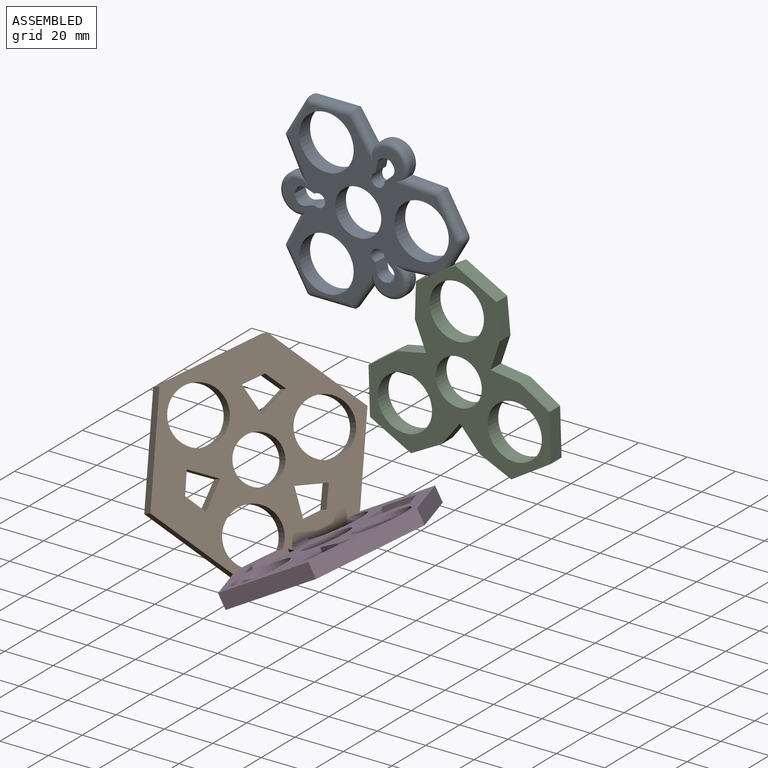
[diagram: assembled view]
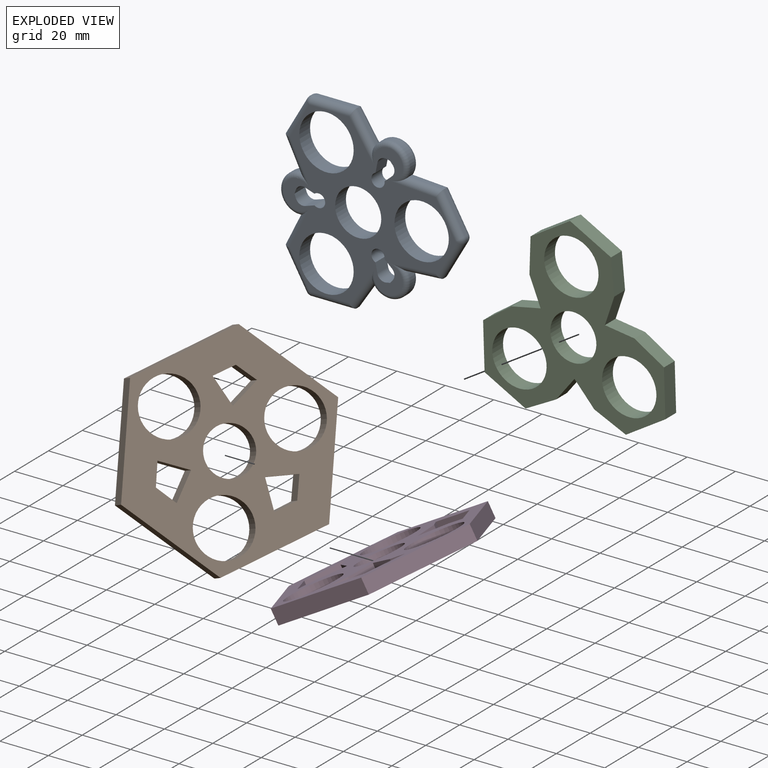
[diagram: exploded view]
GUIDED TOUR — MATED ASSEMBLY (Onshape document 59021a903d0cba100f4f1128, AutoMate assembly 59021a903d0cba100f4f1128_e5d3dc2b73d7f87d813b32a2_ea5c215736bf50aa72ad84df_default)

This assembly has 4 components, labeled P0..P3 below (a component is one placed occurrence of a part; the same part can appear more than once), held together by 2 mates. A mate is a constraint between two components; its type names the relative motion it leaves free:
  PARALLEL — keeps the two listed directions parallel.
Axis/direction vectors are unit vectors and 'through' points are millimeter coordinates, both in the assembly's world frame.

MATES
  1. PARALLEL "Parallel 2": P2 <-> P0, direction (0.850, 0.000, 0.527) through (-41.20, -40.34, -11.28) mm
  2. PARALLEL "Parallel 1": P1 <-> P3, direction (-0.433, -0.866, -0.250) through (-89.29, -59.30, -126.56) mm

ASSEMBLY ORDER
  1. P1 — the base component [order heuristic]
  2. P3 — core [order heuristic]
  3. P0 [order verified]
  4. P2 [order verified]
Order-tag legend:
  [order verified] — this step's position reverses a verified removal order: the component was checked to insert without passing through the ones already placed.
  [order heuristic] — the first 2 components form the assembly's core: parts whose collision-free extraction could not be verified, listed in mate-graph order.

Of the 4 components, 2 carry the full construction recipe — the FeatureScript program that regenerates the part's solid from scratch; the rest are supplied as boundary geometry only.
Each toured component is shown spotlighted twice — in the assembled view, then in the exploded view, where a leader line traces a displaced component back to its assembled socket (saturated green if recipe-attached, orange if geometry-only; every other component desaturated gray) — followed by its recipe or geometry summary and the mates that hold it.
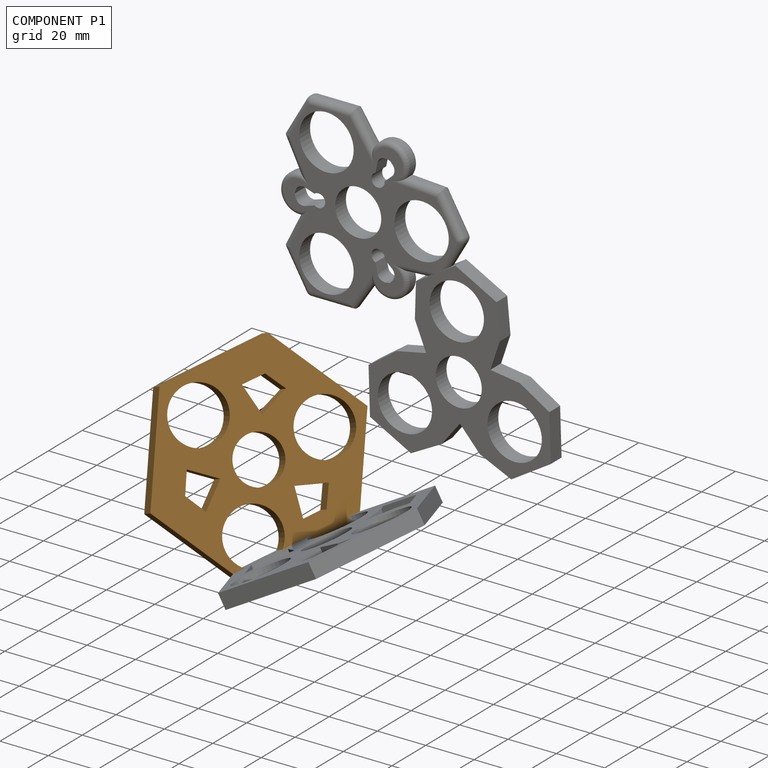
[diagram: component P1 — assembled]
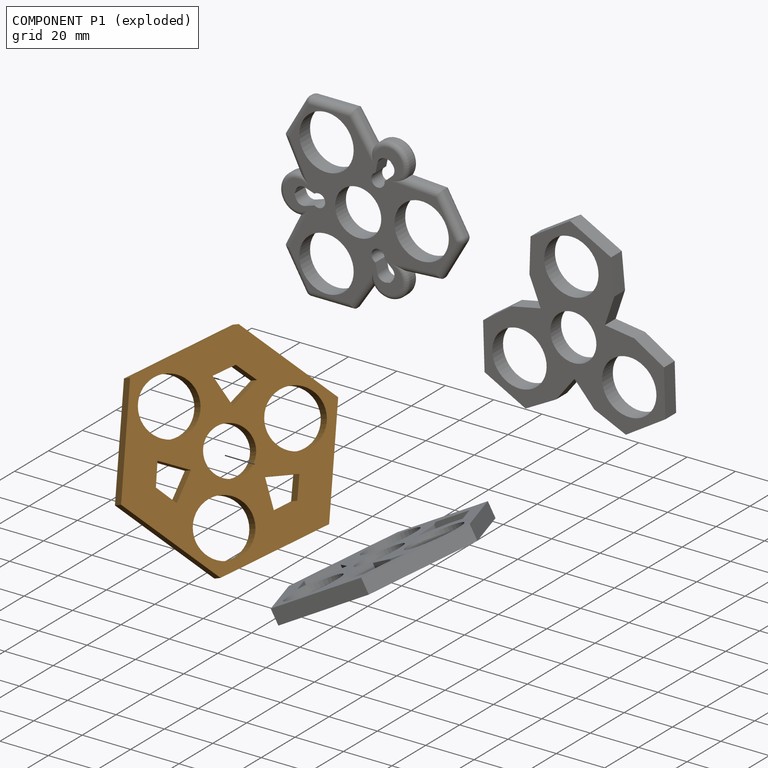
[diagram: component P1 — exploded]
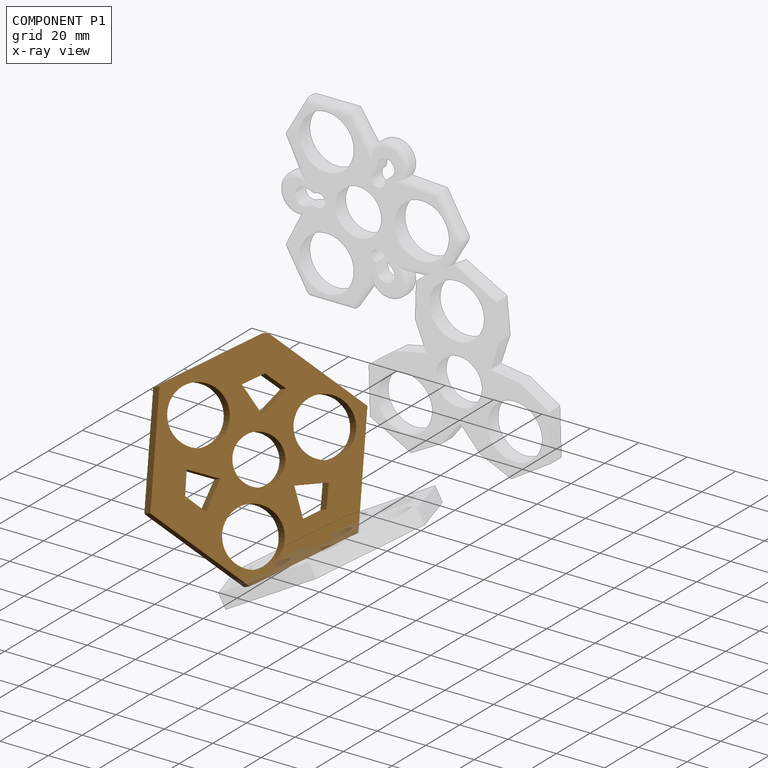
[diagram: component P1 — x-ray view]
COMPONENT P1 — geometry summary (no construction recipe available for this part):
  bounding box: 86.4 x 74.8 x 6.4 mm
  B-rep topology: 1 solid, 29 faces, 162 edges
  volume: 19272 mm^3 (47% of its bounding box)
  symmetry: 2-fold rotationally symmetric about the x axis; 3-fold rotationally symmetric about the y axis; mirror-symmetric across its y mid-plane, z mid-plane
Held by: PARALLEL mate "Parallel 1" to P3.
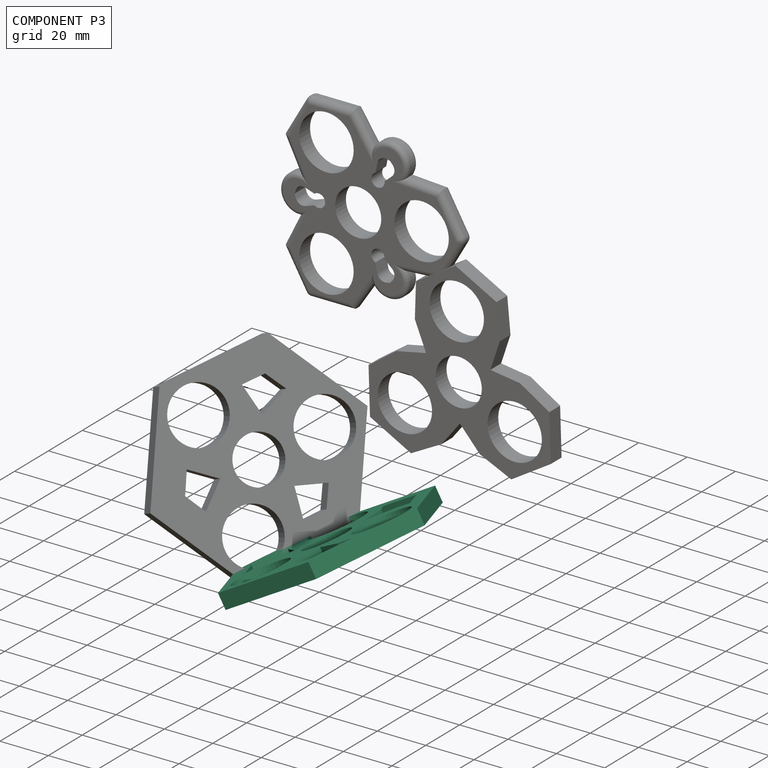
[diagram: component P3 — assembled]
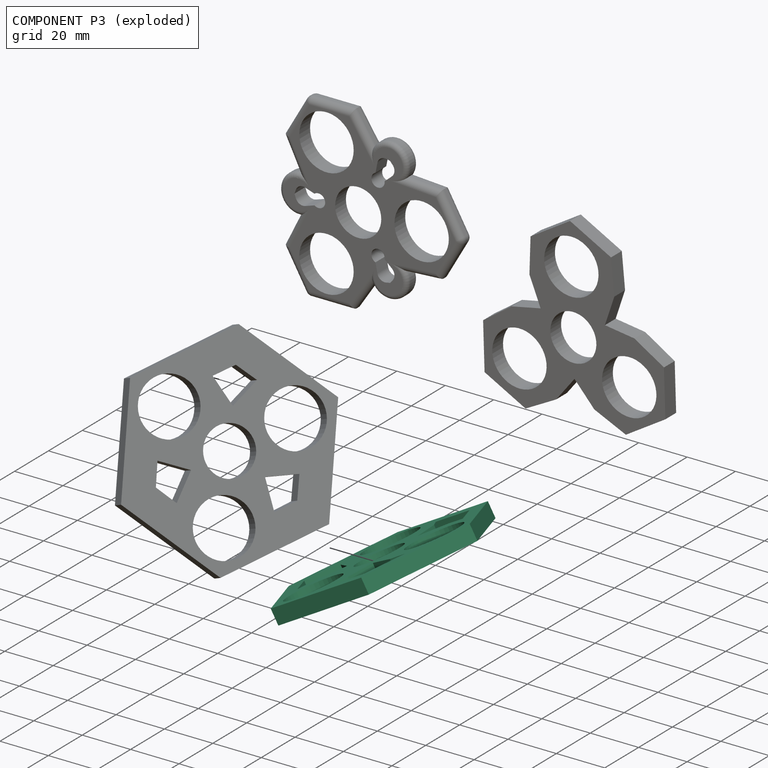
[diagram: component P3 — exploded]
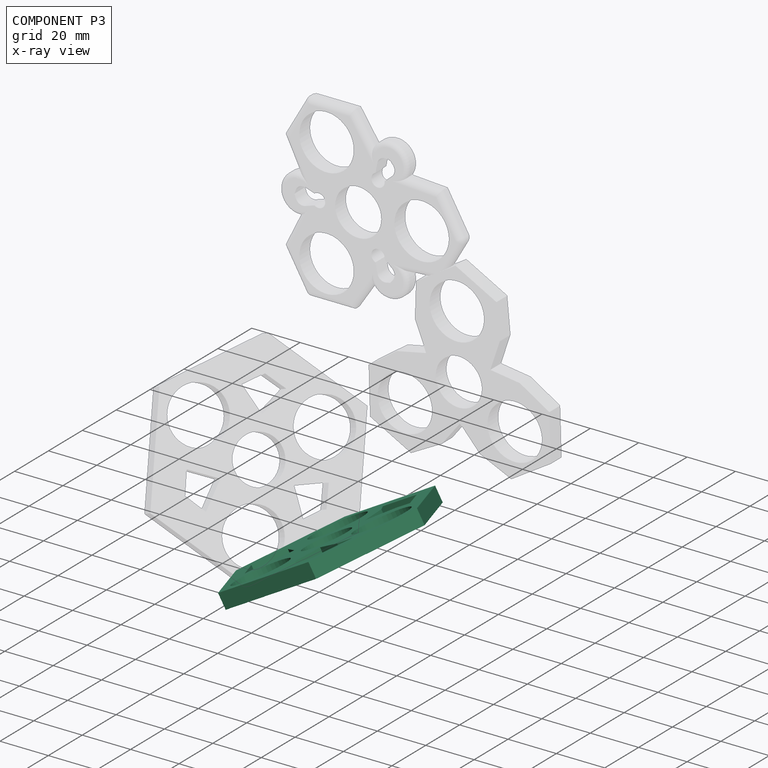
[diagram: component P3 — x-ray view]
COMPONENT P3 — recipe-attached (CADFS 00746139, mesh-verified: the recipe's output STEP matches this component's geometry to below the mesh-comparison resolution (tessellation chordal tolerance ~0.172 mm)).
Held by: PARALLEL mate "Parallel 1" to P1.
Construction recipe (FeatureScript — the CAD program that rebuilds this solid; sketch coordinates are in the units given by the * unit suffixes, e.g. mm):

FeatureScript 1511;
import(path : "onshape/std/geometry.fs", version : "1511.0");
import(path : "onshape/std/common.fs", version : "1511.0");
const mm = millimeter;
const VERTEX = EntityType.VERTEX;
const EDGE = EntityType.EDGE;
const FACE = EntityType.FACE;
const BODY = EntityType.BODY;
function v(x, y){return vector(x, y);}
function OD(order){return orderDisambiguation(order);}
function OSD(set){return originalSetDisambiguation(set);}
function TD(topology){return topologyDisambiguation(topology);}
function TDD(query){return trueDependencyDisambiguation(query);}
function sQuery(a, b, c) {return sketchEntityQuery(a, b, c);}

annotation { "Feature Type Name" : "Feature", "Feature Type Description" : "" }
export const myFeature = defineFeature(function(context is Context, id is Id, definition is map)
    precondition{}
    {
        {
            var Q0;
            Q0=qCreatedBy(makeId("Front.planeOp"),FACE);
            var sketch = newSketch(context, id + "F0", { "sketchPlane" : qUnion([Q0])});
            skLineSegment(sketch, "E0.0", {"start": v(33.57, 16.65) * mm, "end": v(42.45, 1.27) * mm});
            skLineSegment(sketch, "E0.1", {"start": v(42.45, -1.27) * mm, "end": v(33.57, -16.65) * mm});
            skLineSegment(sketch, "E0.2", {"start": v(-2.36, -37.4) * mm, "end": v(-20.12, -37.4) * mm});
            skLineSegment(sketch, "E0.3", {"start": v(-22.32, -36.12) * mm, "end": v(-31.2, -20.75) * mm});
            skLineSegment(sketch, "E0.4", {"start": v(-31.2, 20.75) * mm, "end": v(-22.32, 36.12) * mm});
            skLineSegment(sketch, "E0.5", {"start": v(-20.12, 37.4) * mm, "end": v(-2.36, 37.4) * mm});
            skPoint(sketch, "E0.0.midPoint", {"position": v(32.38, 18.7) * mm});
            skPoint(sketch, "E1.visualSharp", {"position": v(-43.18, 0) * mm});
            skPoint(sketch, "E2.visualSharp", {"position": v(-21.59, 37.4) * mm});
            skArc(sketch, "E2.filletArc", {"start": v(-20.12, 37.4) * mm, "mid": v(-21.4, 37.05) * mm, "end": v(-22.32, 36.12) * mm});
            skPoint(sketch, "E3.visualSharp", {"position": v(21.6, 37.4) * mm});
            skPoint(sketch, "E4.visualSharp", {"position": v(43.18, 0) * mm});
            skArc(sketch, "E4.filletArc", {"start": v(42.45, -1.27) * mm, "mid": v(42.79, 0) * mm, "end": v(42.45, 1.27) * mm});
            skPoint(sketch, "E5.visualSharp", {"position": v(21.6, -37.4) * mm});
            skPoint(sketch, "E6.visualSharp", {"position": v(-21.59, -37.4) * mm});
            skArc(sketch, "E6.filletArc", {"start": v(-22.32, -36.12) * mm, "mid": v(-21.4, -37.05) * mm, "end": v(-20.12, -37.4) * mm});
            skCircle(sketch, "E7", {"center": v(0, 0) * mm, "radius": 9.53 * mm});
            skCircle(sketch, "E8", {"center": v(-13.1, -22.7) * mm, "radius": 11.24 * mm});
            skCircle(sketch, "E9.MirrorC", {"center": v(26.22, 0) * mm, "radius": 11.24 * mm});
            skCircle(sketch, "E10.MirrorC", {"center": v(-13.1, 22.7) * mm, "radius": 11.24 * mm});
            skLineSegment(sketch, "E11.trimOffspring", {"start": v(-21.4, -37.05) * mm, "end": v(-21.59, -37.4) * mm});
            skLineSegment(sketch, "E12", {"start": v(-2.36, -37.4) * mm, "end": v(-2.32, -37.32) * mm});
            skLineSegment(sketch, "E13", {"start": v(5.58, -25.44) * mm, "end": v(7.68, -13.3) * mm});
            skLineSegment(sketch, "E14.MirrorCS", {"start": v(19.24, -17.55) * mm, "end": v(7.68, -13.3) * mm});
            skLineSegment(sketch, "E15.MirrorCS", {"start": v(19.24, 17.55) * mm, "end": v(7.68, 13.3) * mm});
            skLineSegment(sketch, "E16.MirrorCS", {"start": v(33.57, 16.65) * mm, "end": v(33.48, 16.65) * mm});
            skLineSegment(sketch, "E17.MirrorCS", {"start": v(5.58, 25.44) * mm, "end": v(7.68, 13.3) * mm});
            skLineSegment(sketch, "E18.MirrorCS", {"start": v(33.57, -16.65) * mm, "end": v(42.45, -1.27) * mm});
            skPoint(sketch, "E19.MirrorP", {"position": v(21.59, -37.4) * mm});
            skPoint(sketch, "E20.MirrorCS.end.orphan", {"position": v(42.45, -73.52) * mm});
            skPoint(sketch, "E20.MirrorCS.start.orphan", {"position": v(22.32, -38.67) * mm});
            skPoint(sketch, "E21.MirrorCS.end.orphan", {"position": v(20.12, -37.4) * mm});
            skPoint(sketch, "E21.MirrorCS.start.orphan", {"position": v(0, -37.4) * mm});
            skPoint(sketch, "E22.orphan", {"position": v(22.32, -36.12) * mm});
            skLineSegment(sketch, "E23.MirrorCS", {"start": v(-24.82, -7.89) * mm, "end": v(-15.35, 0) * mm});
            skLineSegment(sketch, "E24.MirrorCS", {"start": v(-31.2, 20.75) * mm, "end": v(-31.16, 20.67) * mm});
            skLineSegment(sketch, "E25.MirrorCS", {"start": v(-31.2, -20.75) * mm, "end": v(-31.16, -20.67) * mm});
            skPoint(sketch, "E1.filletArc.end.orphan", {"position": v(-42.45, -1.27) * mm});
            skLineSegment(sketch, "E26", {"start": v(7.68, 13.3) * mm, "end": v(19.24, 17.55) * mm});
            skCircle(sketch, "E27.cCircle", {"center": v(0, 0) * mm, "radius": 37.4 * mm, "construction": true});
            skLineSegment(sketch, "E27.0", {"start": v(33.57, 16.65) * mm, "end": v(43.18, 0) * mm});
            skLineSegment(sketch, "E27.1", {"start": v(43.18, 0) * mm, "end": v(21.6, -37.4) * mm});
            skLineSegment(sketch, "E27.2", {"start": v(21.6, -37.4) * mm, "end": v(-21.59, -37.4) * mm});
            skLineSegment(sketch, "E27.3", {"start": v(-21.59, -37.4) * mm, "end": v(-43.18, 0) * mm});
            skLineSegment(sketch, "E27.4", {"start": v(-43.18, 0) * mm, "end": v(-21.6, 37.4) * mm});
            skLineSegment(sketch, "E27.5", {"start": v(-21.6, 37.4) * mm, "end": v(-2.36, 37.4) * mm});
            skLineSegment(sketch, "E28.trimOffspring", {"start": v(17.92, -31.04) * mm, "end": v(25.96, -17.13) * mm});
            skLineSegment(sketch, "E29.trimOffspring", {"start": v(17.92, -31.04) * mm, "end": v(1.86, -31.04) * mm});
            skPoint(sketch, "E30.MirrorCS.start.orphan", {"position": v(16.1, -34.22) * mm});
            skPoint(sketch, "E31.0.start.orphan", {"position": v(21.6, -31.04) * mm});
            skLineSegment(sketch, "E32.trimOffspring", {"start": v(1.86, -31.04) * mm, "end": v(5.58, -25.44) * mm});
            skLineSegment(sketch, "E33.trimOffspring", {"start": v(25.96, -17.13) * mm, "end": v(19.24, -17.55) * mm});
            skPoint(sketch, "E34.orphan", {"position": v(21.59, 37.4) * mm});
            skPoint(sketch, "E35.orphan", {"position": v(-31.05, -2.77) * mm});
            skPoint(sketch, "E36.orphan", {"position": v(-31.05, 2.77) * mm});
            skPoint(sketch, "E37.orphan", {"position": v(-23.02, 11.15) * mm});
            skPoint(sketch, "E38.orphan", {"position": v(-23.02, -11.15) * mm});
            skLineSegment(sketch, "E39.trimOffspring", {"start": v(-24.86, -7.96) * mm, "end": v(-24.82, -7.89) * mm});
            skLineSegment(sketch, "E40.MirrorCS", {"start": v(17.92, 31.04) * mm, "end": v(25.96, 17.13) * mm});
            skLineSegment(sketch, "E41.MirrorCS", {"start": v(17.92, 31.04) * mm, "end": v(1.86, 31.04) * mm});
            skLineSegment(sketch, "E42.MirrorCS", {"start": v(21.6, 37.4) * mm, "end": v(-21.59, 37.4) * mm});
            skLineSegment(sketch, "E43.MirrorCS", {"start": v(43.18, 0) * mm, "end": v(21.6, 37.4) * mm});
            skLineSegment(sketch, "E44.trimOffspring", {"start": v(1.86, 31.04) * mm, "end": v(5.58, 25.44) * mm});
            skLineSegment(sketch, "E45.trimOffspring", {"start": v(25.96, 17.13) * mm, "end": v(19.24, 17.55) * mm});
            skLineSegment(sketch, "E46.MirrorCS", {"start": v(-35.85, 0) * mm, "end": v(-27.81, -13.92) * mm});
            skLineSegment(sketch, "E47.MirrorCS", {"start": v(-35.85, 0) * mm, "end": v(-27.81, 13.92) * mm});
            skLineSegment(sketch, "E48.MirrorCS", {"start": v(-27.81, 13.92) * mm, "end": v(-24.82, 7.89) * mm});
            skLineSegment(sketch, "E49.MirrorCS", {"start": v(-27.81, -13.92) * mm, "end": v(-24.86, -7.96) * mm});
            skLineSegment(sketch, "E50", {"start": v(-24.82, 7.89) * mm, "end": v(-15.35, 0) * mm});
            skSolve(sketch);
        }
        {
            var Q0;
            Q0=qSketchRegion(id+"F0",true);
            extrude(context, id + "F1", {"entities" : qUnion([Q0]), "depth" : 6.35 * mm, "offsetDistance" : 25.4 * mm});
        }
    });
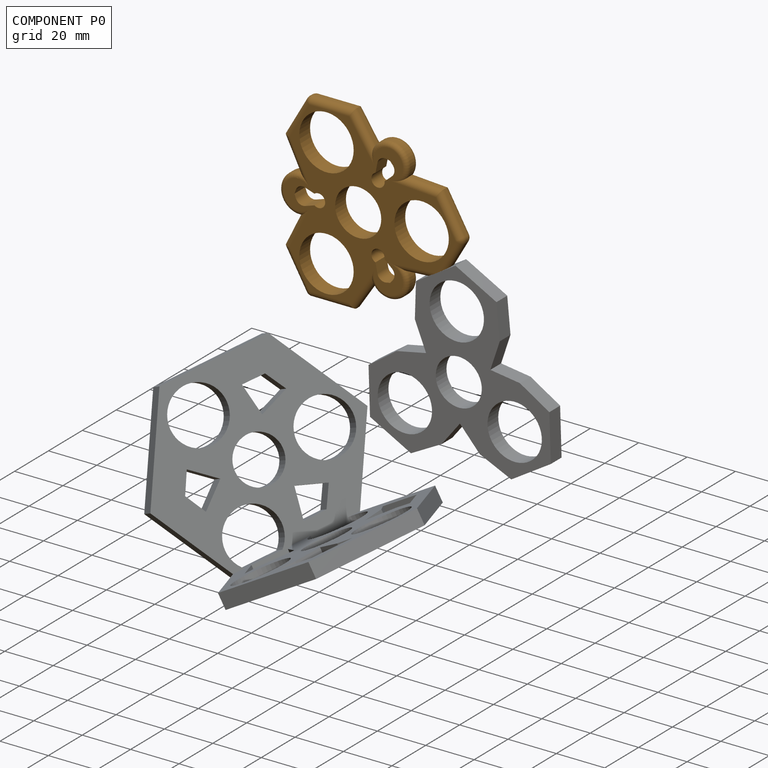
[diagram: component P0 — assembled]
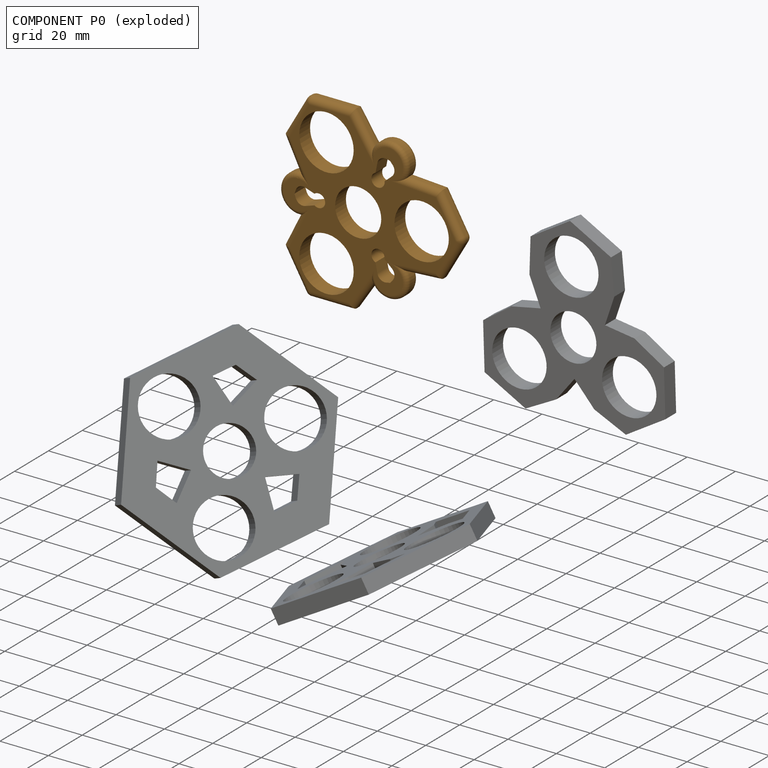
[diagram: component P0 — exploded]
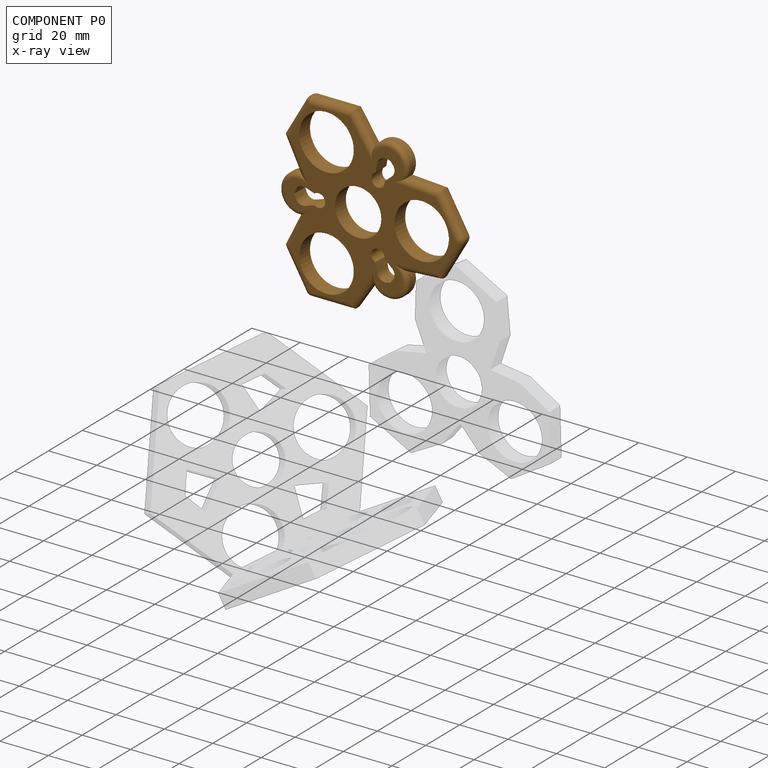
[diagram: component P0 — x-ray view]
COMPONENT P0 — geometry summary (no construction recipe available for this part):
  bounding box: 76.1 x 74.8 x 6.4 mm
  B-rep topology: 1 solid, 85 faces, 440 edges
  volume: 13080 mm^3 (36% of its bounding box)
  symmetry: 2-fold rotationally symmetric about the x axis; mirror-symmetric across its y mid-plane, z mid-plane
Held by: PARALLEL mate "Parallel 2" to P2.
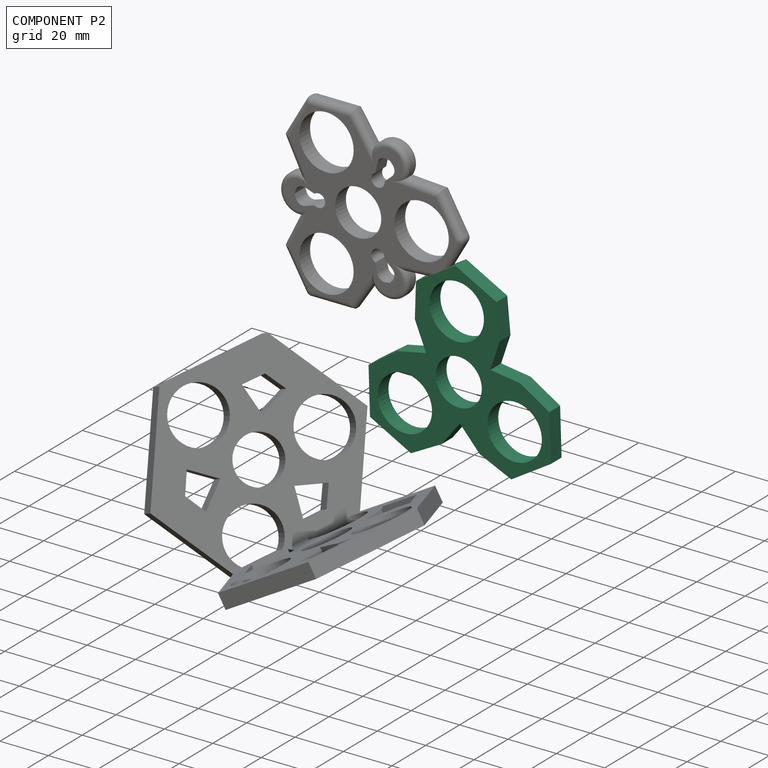
[diagram: component P2 — assembled]
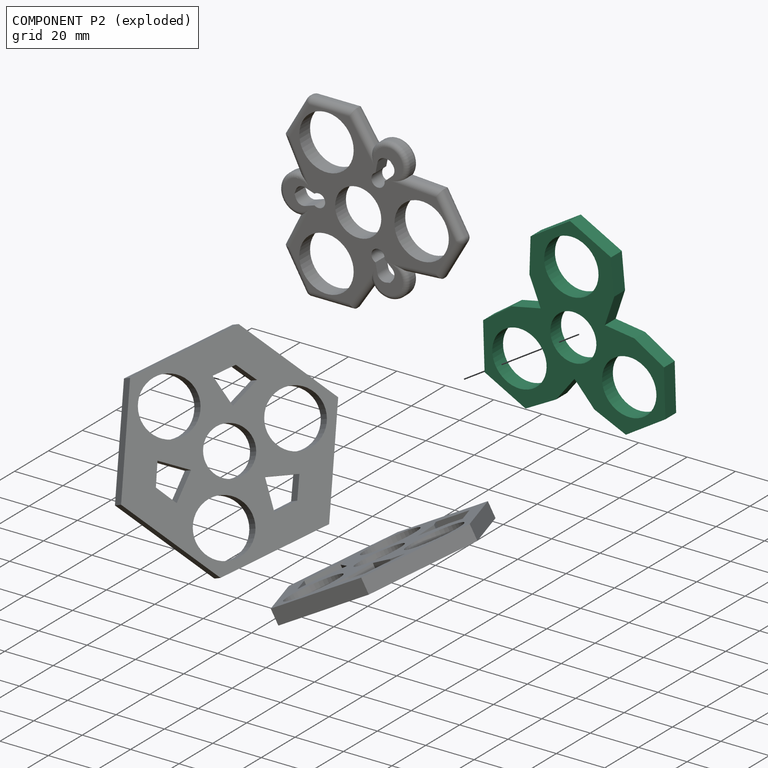
[diagram: component P2 — exploded]
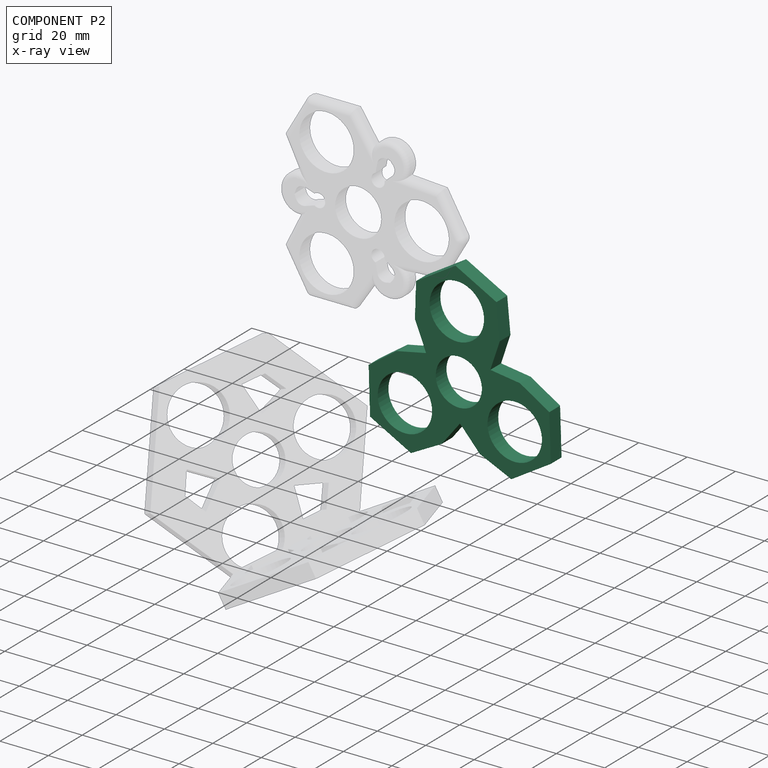
[diagram: component P2 — x-ray view]
COMPONENT P2 — recipe-attached (CADFS 00746137, mesh-verified: the recipe's output STEP matches this component's geometry to below the mesh-comparison resolution (tessellation chordal tolerance ~0.159 mm)).
Held by: PARALLEL mate "Parallel 2" to P0.
Construction recipe (FeatureScript — the CAD program that rebuilds this solid; sketch coordinates are in the units given by the * unit suffixes, e.g. mm):

FeatureScript 1511;
import(path : "onshape/std/geometry.fs", version : "1511.0");
import(path : "onshape/std/common.fs", version : "1511.0");
const mm = millimeter;
const VERTEX = EntityType.VERTEX;
const EDGE = EntityType.EDGE;
const FACE = EntityType.FACE;
const BODY = EntityType.BODY;
function v(x, y){return vector(x, y);}
function OD(order){return orderDisambiguation(order);}
function OSD(set){return originalSetDisambiguation(set);}
function TD(topology){return topologyDisambiguation(topology);}
function TDD(query){return trueDependencyDisambiguation(query);}
function sQuery(a, b, c) {return sketchEntityQuery(a, b, c);}

annotation { "Feature Type Name" : "Feature", "Feature Type Description" : "" }
export const myFeature = defineFeature(function(context is Context, id is Id, definition is map)
    precondition{}
    {
        {
            var Q0;
            Q0=qCreatedBy(makeId("Front.planeOp"),FACE);
            var sketch = newSketch(context, id + "F0", { "sketchPlane" : qUnion([Q0])});
            skLineSegment(sketch, "E0.0", {"start": v(33.57, 16.65) * mm, "end": v(42.45, 1.27) * mm});
            skLineSegment(sketch, "E0.1", {"start": v(42.45, -1.27) * mm, "end": v(33.57, -16.65) * mm});
            skLineSegment(sketch, "E0.2", {"start": v(-2.36, -37.4) * mm, "end": v(-20.12, -37.4) * mm});
            skLineSegment(sketch, "E0.3", {"start": v(-22.32, -36.12) * mm, "end": v(-31.2, -20.75) * mm});
            skLineSegment(sketch, "E0.4", {"start": v(-31.2, 20.75) * mm, "end": v(-22.32, 36.12) * mm});
            skLineSegment(sketch, "E0.5", {"start": v(-20.12, 37.4) * mm, "end": v(-2.36, 37.4) * mm});
            skPoint(sketch, "E0.0.midPoint", {"position": v(32.38, 18.7) * mm});
            skPoint(sketch, "E1.visualSharp", {"position": v(-43.18, 0) * mm});
            skPoint(sketch, "E2.visualSharp", {"position": v(-21.59, 37.4) * mm});
            skArc(sketch, "E2.filletArc", {"start": v(-20.12, 37.4) * mm, "mid": v(-21.4, 37.05) * mm, "end": v(-22.32, 36.12) * mm});
            skPoint(sketch, "E3.visualSharp", {"position": v(21.6, 37.4) * mm});
            skPoint(sketch, "E4.visualSharp", {"position": v(43.18, 0) * mm});
            skArc(sketch, "E4.filletArc", {"start": v(42.45, -1.27) * mm, "mid": v(42.79, 0) * mm, "end": v(42.45, 1.27) * mm});
            skPoint(sketch, "E5.visualSharp", {"position": v(21.6, -37.4) * mm});
            skPoint(sketch, "E6.visualSharp", {"position": v(-21.59, -37.4) * mm});
            skArc(sketch, "E6.filletArc", {"start": v(-22.32, -36.12) * mm, "mid": v(-21.4, -37.05) * mm, "end": v(-20.12, -37.4) * mm});
            skCircle(sketch, "E7", {"center": v(0, 0) * mm, "radius": 9.53 * mm});
            skCircle(sketch, "E8", {"center": v(-13.1, -22.7) * mm, "radius": 11.24 * mm});
            skCircle(sketch, "E9.MirrorC", {"center": v(26.22, 0) * mm, "radius": 11.24 * mm});
            skCircle(sketch, "E10.MirrorC", {"center": v(-13.1, 22.7) * mm, "radius": 11.24 * mm});
            skLineSegment(sketch, "E11.trimOffspring", {"start": v(-21.4, -37.05) * mm, "end": v(-21.59, -37.4) * mm});
            skLineSegment(sketch, "E12", {"start": v(-2.36, -37.4) * mm, "end": v(-2.32, -37.32) * mm});
            skLineSegment(sketch, "E13", {"start": v(5.58, -25.44) * mm, "end": v(7.68, -13.3) * mm});
            skLineSegment(sketch, "E14.MirrorCS", {"start": v(19.24, -17.55) * mm, "end": v(7.68, -13.3) * mm});
            skLineSegment(sketch, "E15.MirrorCS", {"start": v(19.24, 17.55) * mm, "end": v(7.68, 13.3) * mm});
            skLineSegment(sketch, "E16.MirrorCS", {"start": v(33.57, 16.65) * mm, "end": v(19.24, 17.55) * mm});
            skLineSegment(sketch, "E17.MirrorCS", {"start": v(5.58, 25.44) * mm, "end": v(7.68, 13.3) * mm});
            skLineSegment(sketch, "E18.MirrorCS", {"start": v(-2.36, 37.4) * mm, "end": v(5.58, 25.44) * mm});
            skLineSegment(sketch, "E19.MirrorCS", {"start": v(33.57, -16.65) * mm, "end": v(42.45, -1.27) * mm});
            skPoint(sketch, "E20.MirrorP", {"position": v(21.59, -37.4) * mm});
            skPoint(sketch, "E21.MirrorCS.end.orphan", {"position": v(42.45, -73.52) * mm});
            skPoint(sketch, "E21.MirrorCS.start.orphan", {"position": v(22.32, -38.67) * mm});
            skPoint(sketch, "E22.MirrorCS.end.orphan", {"position": v(20.12, -37.4) * mm});
            skPoint(sketch, "E22.MirrorCS.start.orphan", {"position": v(0, -37.4) * mm});
            skPoint(sketch, "E23.orphan", {"position": v(22.32, -36.12) * mm});
            skLineSegment(sketch, "E24.MirrorCS", {"start": v(-24.82, -7.89) * mm, "end": v(-15.35, 0) * mm});
            skLineSegment(sketch, "E25.MirrorCS", {"start": v(-24.82, 7.89) * mm, "end": v(-15.35, 0) * mm});
            skLineSegment(sketch, "E26.MirrorCS", {"start": v(-31.2, 20.75) * mm, "end": v(-31.16, 20.67) * mm});
            skLineSegment(sketch, "E27.MirrorCS", {"start": v(-31.2, -20.75) * mm, "end": v(-31.16, -20.67) * mm});
            skPoint(sketch, "E1.filletArc.end.orphan", {"position": v(-42.45, -1.27) * mm});
            skLineSegment(sketch, "E28", {"start": v(7.68, 13.3) * mm, "end": v(19.24, 17.55) * mm});
            skLineSegment(sketch, "E29", {"start": v(-15.35, 0) * mm, "end": v(-24.82, 7.89) * mm});
            skCircle(sketch, "E30.cCircle", {"center": v(0, 0) * mm, "radius": 37.4 * mm, "construction": true});
            skLineSegment(sketch, "E30.0", {"start": v(33.57, 16.65) * mm, "end": v(43.18, 0) * mm});
            skLineSegment(sketch, "E30.1", {"start": v(43.18, 0) * mm, "end": v(32.39, -18.7) * mm});
            skLineSegment(sketch, "E30.3", {"start": v(-21.59, -37.4) * mm, "end": v(-32.38, -18.7) * mm});
            skLineSegment(sketch, "E30.4", {"start": v(-32.39, 18.7) * mm, "end": v(-21.6, 37.4) * mm});
            skLineSegment(sketch, "E30.5", {"start": v(-21.6, 37.4) * mm, "end": v(-2.36, 37.4) * mm});
            skPoint(sketch, "E31.MirrorCS.start.orphan", {"position": v(16.1, -34.22) * mm});
            skPoint(sketch, "E32.0.start.orphan", {"position": v(21.6, -31.04) * mm});
            skLineSegment(sketch, "E33.trimOffspring", {"start": v(1.86, -31.04) * mm, "end": v(5.58, -25.44) * mm});
            skLineSegment(sketch, "E34.trimOffspring", {"start": v(25.96, -17.13) * mm, "end": v(19.24, -17.55) * mm});
            skPoint(sketch, "E35.orphan", {"position": v(21.59, 37.4) * mm});
            skPoint(sketch, "E36.orphan", {"position": v(-31.05, -2.77) * mm});
            skPoint(sketch, "E37.orphan", {"position": v(-31.05, 2.77) * mm});
            skPoint(sketch, "E38.orphan", {"position": v(-23.02, 11.15) * mm});
            skPoint(sketch, "E39.orphan", {"position": v(-23.02, -11.15) * mm});
            skLineSegment(sketch, "E40.trimOffspring", {"start": v(-24.86, -7.96) * mm, "end": v(-24.82, -7.89) * mm});
            skLineSegment(sketch, "E41.trimOffspring", {"start": v(-24.86, 7.96) * mm, "end": v(-24.82, 7.89) * mm});
            skLineSegment(sketch, "E42", {"start": v(19.24, -17.55) * mm, "end": v(33.57, -16.65) * mm});
            skLineSegment(sketch, "E43", {"start": v(5.58, -25.44) * mm, "end": v(-2.32, -37.32) * mm});
            skLineSegment(sketch, "E44.trimOffspring", {"start": v(0, -37.4) * mm, "end": v(-21.59, -37.4) * mm});
            skLineSegment(sketch, "E45", {"start": v(0, 0) * mm, "end": v(-13.1, -22.7) * mm});
            skLineSegment(sketch, "E46.MirrorCS", {"start": v(-24.82, -7.89) * mm, "end": v(-31.16, -20.67) * mm});
            skLineSegment(sketch, "E47.MirrorCS", {"start": v(-27.81, 13.92) * mm, "end": v(-24.82, 7.89) * mm});
            skLineSegment(sketch, "E48.MirrorCS", {"start": v(-24.82, 7.89) * mm, "end": v(-31.2, 20.75) * mm});
            skSolve(sketch);
        }
        {
            var Q0;
            Q0=qSketchRegion(id+"F0",true);
            extrude(context, id + "F1", {"entities" : qUnion([Q0]), "depth" : 6.35 * mm, "offsetDistance" : 25.4 * mm});
        }
    });
PROVENANCE & LICENSES
Assembly (occurrences, transforms, mates, per-part STEP geometry): AutoMate dataset, Zenodo record 7776208, CC0.
Construction recipes: CADFS (HuggingFace VladPyatov/CADFS, CC-BY-4.0, layered over the ABC dataset), FeatureScript reconstruction programs keyed by ABC model id.
Join: ABC meta listings map ABC model id -> Onshape documentId; within a shared document, parts are matched by geometric signature (bounding-box dims + volume at 0.1% relative tolerance, exact B-rep face/solid counts).
Verification: 2 of this assembly's 4 components carry a recipe attachment, and every attachment is mesh-verified: the CADFS STEP and the AutoMate member STEP were compared as meshes in their shared local frame (symmetric sampled-point-to-mesh distance); worst across the 2 attachments: below the mesh-comparison resolution (tessellation chordal tolerance ~0.172 mm) on a 114 mm part.
Renders: orthographic iso camera (az 35 / el 25); the floor grid conveys scale (grid pitch printed in each image; no ruler). In the exploded view each component is displaced by its stored offset vector: the offsets alone carry the explosion direction (mate normal/axis signs are not orientation cues and do not encode it), and separation distances are assigned per mate-chain, not proportionally to assembly-order depth.
